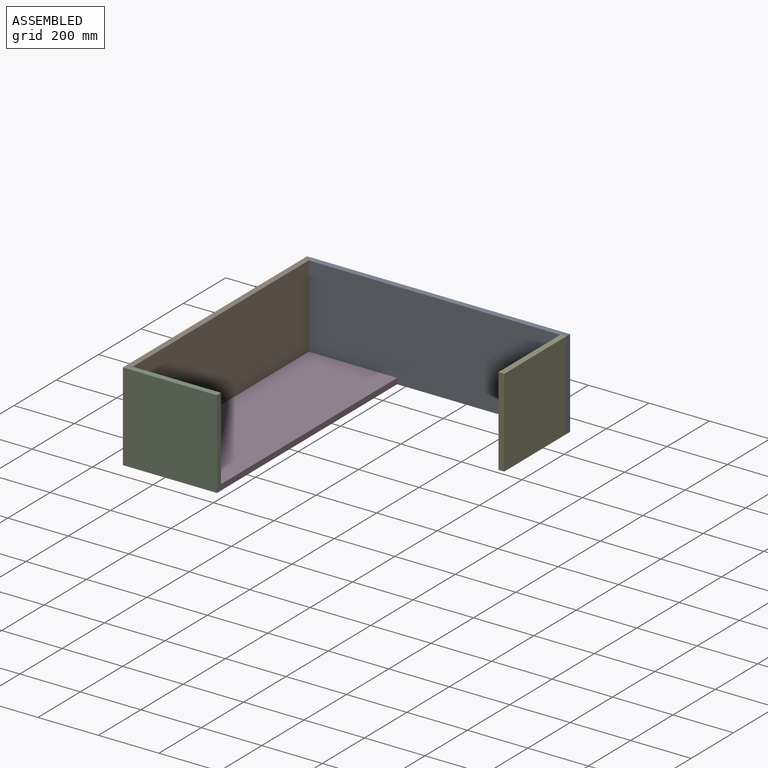
[diagram: assembled view]
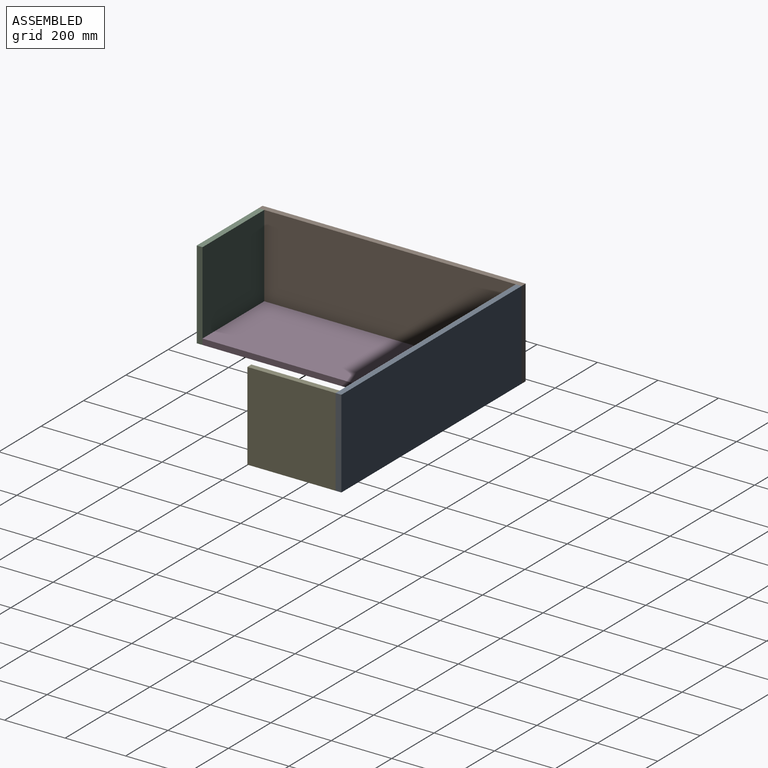
[diagram: assembled view, second angle]
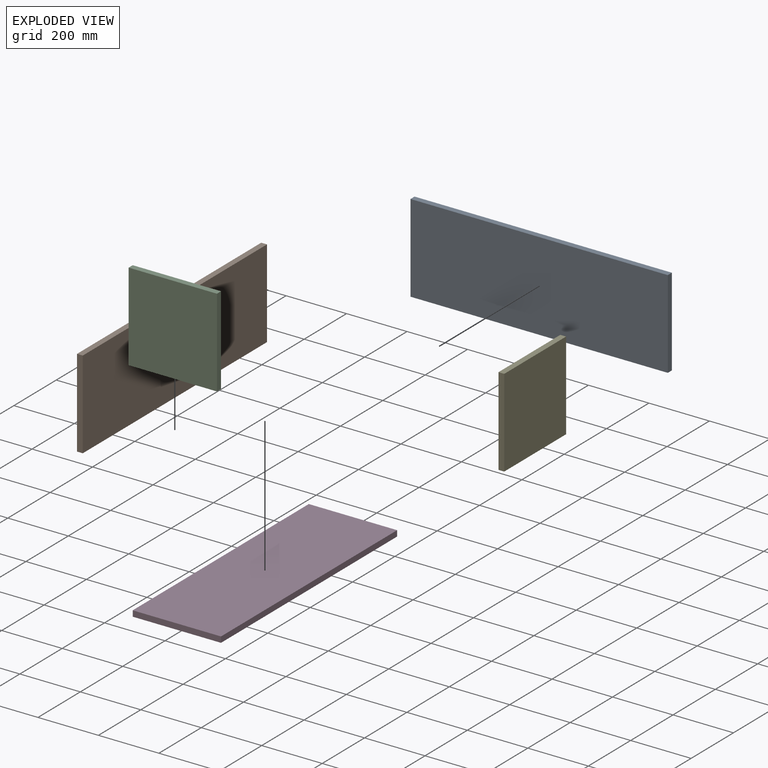
[diagram: exploded view]
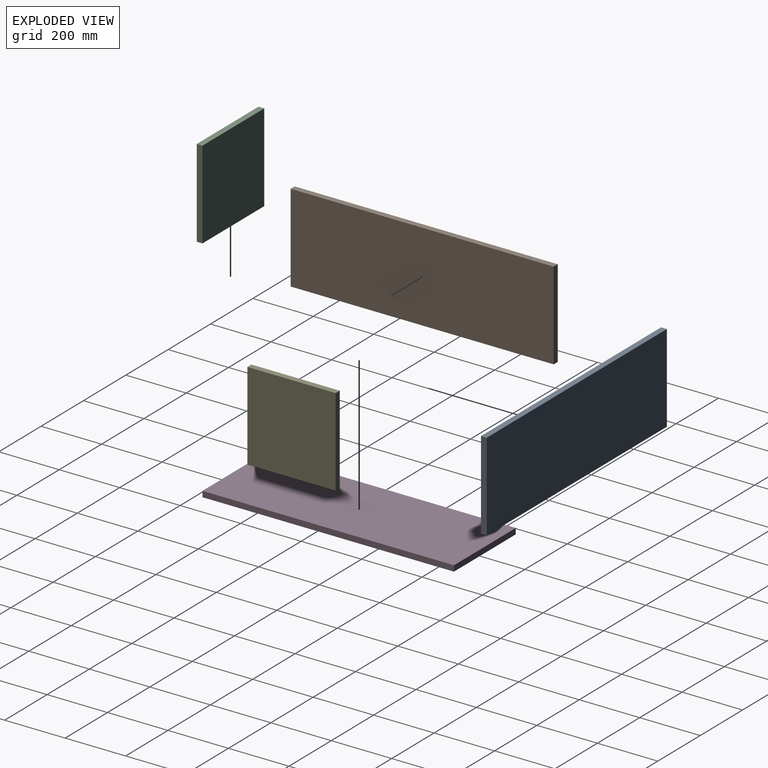
[diagram: exploded view, second angle]
ASSEMBLY  parts=5 mates=12
PART A: 6 faces, bbox 850.9x19.1x292.1 mm
  f0: plane 292.1x19.05mm, normal (-1,0,0), area 5564.5mm2, adj f1,f3,f4,f5
  f1: plane 850.9x19.05mm, normal (0,0,-1), area 16209.6mm2, adj f0,f2,f4,f5
  f2: plane 292.1x19.05mm, normal (1,0,0), area 5564.5mm2, adj f1,f3,f4,f5
  f3: plane 850.9x19.05mm, normal (0,0,1), area 16209.6mm2, adj f0,f2,f4,f5
  f4: plane 850.9x292.1mm, normal (0,-1,0), area 248547.9mm2, adj f0,f1,f2,f3
  f5: plane 850.9x292.1mm, normal (0,1,0), area 248547.9mm2, adj f0,f1,f2,f3
PART B: 6 faces, bbox 870x19.1x292.1 mm
  f0: plane 292.1x19.05mm, normal (-1,0,0), area 5564.5mm2, adj f1,f3,f4,f5
  f1: plane 869.95x19.05mm, normal (0,0,-1), area 16572.5mm2, adj f0,f2,f4,f5
  f2: plane 292.1x19.05mm, normal (1,0,0), area 5564.5mm2, adj f1,f3,f4,f5
  f3: plane 869.95x19.05mm, normal (0,0,1), area 16572.5mm2, adj f0,f2,f4,f5
  f4: plane 869.95x292.1mm, normal (0,1,0), area 254112.4mm2, adj f0,f1,f2,f3
  f5: plane 869.95x292.1mm, normal (0,-1,0), area 254112.4mm2, adj f0,f1,f2,f3
PART C: 6 faces, bbox 292.1x19.1x292.1 mm
  f0: plane 292.1x19.05mm, normal (-1,0,0), area 5564.5mm2, adj f1,f3,f4,f5
  f1: plane 292.1x19.05mm, normal (0,0,-1), area 5564.5mm2, adj f0,f2,f4,f5
  f2: plane 292.1x19.05mm, normal (1,0,0), area 5564.5mm2, adj f1,f3,f4,f5
  f3: plane 292.1x19.05mm, normal (0,0,1), area 5564.5mm2, adj f0,f2,f4,f5
  f4: plane 292.1x292.1mm, normal (0,1,0), area 85322.4mm2, adj f0,f1,f2,f3
  f5: plane 292.1x292.1mm, normal (0,-1,0), area 85322.4mm2, adj f0,f1,f2,f3
PART D: 6 faces, bbox 831.9x19.1x292.1 mm
  f0: plane 292.1x19.05mm, normal (-1,0,0), area 5564.5mm2, adj f1,f3,f4,f5
  f1: plane 831.85x19.05mm, normal (0,0,-1), area 15846.7mm2, adj f0,f2,f4,f5
  f2: plane 292.1x19.05mm, normal (1,0,0), area 5564.5mm2, adj f1,f3,f4,f5
  f3: plane 831.85x19.05mm, normal (0,0,1), area 15846.7mm2, adj f0,f2,f4,f5
  f4: plane 831.85x292.1mm, normal (0,-1,0), area 242983.4mm2, adj f0,f1,f2,f3
  f5: plane 831.85x292.1mm, normal (0,1,0), area 242983.4mm2, adj f0,f1,f2,f3
PART E: same geometry as C
PLACE A t=(463.34,893.57,-823.76)mm
PLACE B rot(axis=(0,0,1),90deg) t=(463.34,23.62,-823.76)mm
PLACE C t=(463.34,23.62,-823.76)mm
PLACE D rot(axis=(0.58,0.58,0.58),120deg) t=(463.34,42.67,-804.71)mm
PLACE E rot(axis=(0,0,1),90deg) t=(1314.24,582.42,-823.76)mm
MATE planar E.f3 <-> A.f3  axis (0,0,1) through (1304.72,728.47,-531.66)mm
MATE planar B.f3 <-> C.f3  axis (0,0,1) through (453.82,458.6,-531.66)mm
MATE planar B.f5 <-> A.f0  axis (1,0,0) through (463.34,458.6,-677.71)mm
MATE planar D.f4 <-> B.f1  axis (0,0,-1) through (609.39,458.6,-823.76)mm
MATE planar D.f3 <-> C.f2  axis (1,0,0) through (755.44,458.6,-814.24)mm
MATE planar C.f5 <-> B.f0  axis (0,-1,0) through (609.39,23.62,-677.71)mm
MATE planar D.f0 <-> C.f4  axis (0,-1,0) through (609.39,42.67,-814.24)mm
MATE planar A.f5 <-> B.f2  axis (0,1,0) through (888.79,893.57,-677.71)mm
MATE planar A.f4 <-> E.f2  axis (0,-1,0) through (888.79,874.52,-677.71)mm
MATE planar E.f5 <-> A.f2  axis (1,0,0) through (1314.24,728.47,-677.71)mm
MATE planar C.f0 <-> B.f5  axis (-1,0,0) through (463.34,33.15,-677.71)mm
MATE planar A.f3 <-> B.f3  axis (0,0,1) through (888.79,884.05,-531.66)mm
